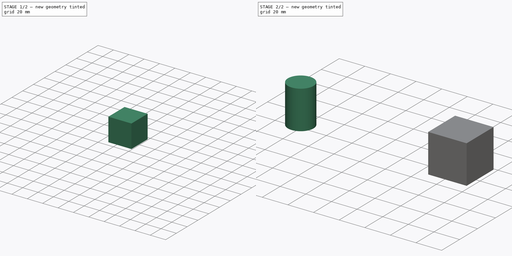
[diagram: build sequence overview — one tinted view per stage of 2, left to right]
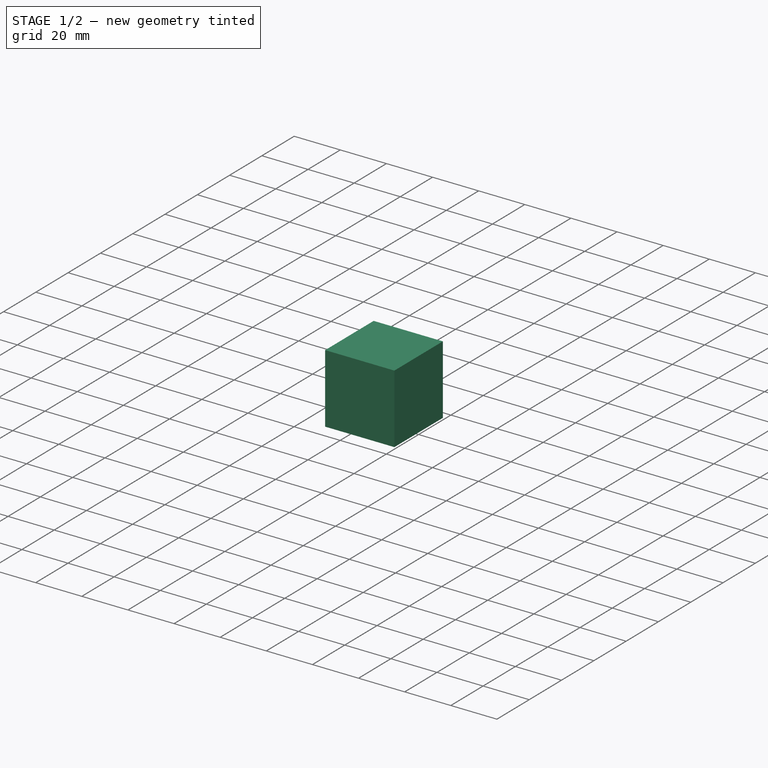
[diagram: stage 1 of 2 — iso view after this stage's code; geometry added in this stage tinted green]
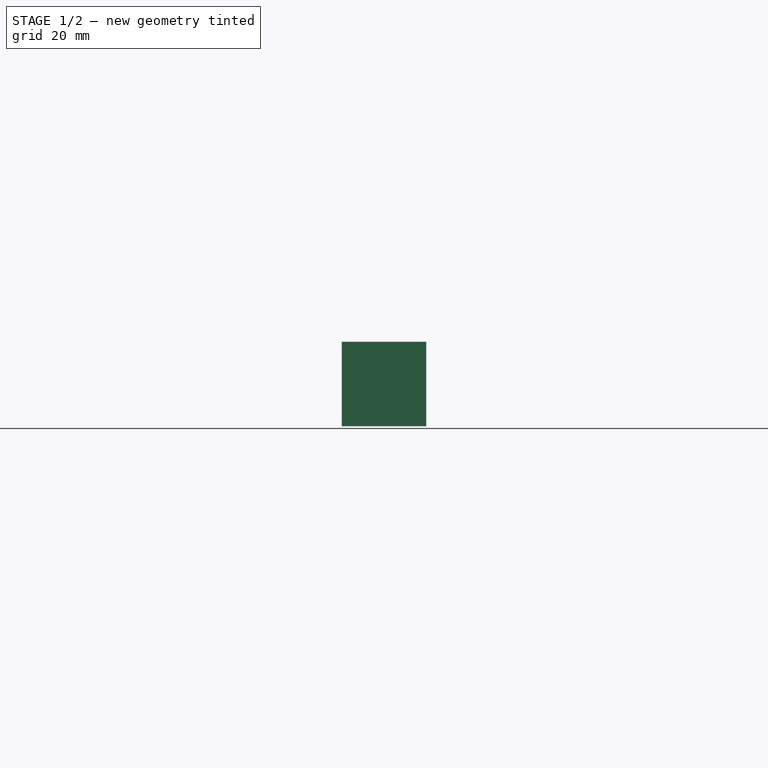
[diagram: stage 1 of 2 — front view after this stage's code; geometry added in this stage tinted green]
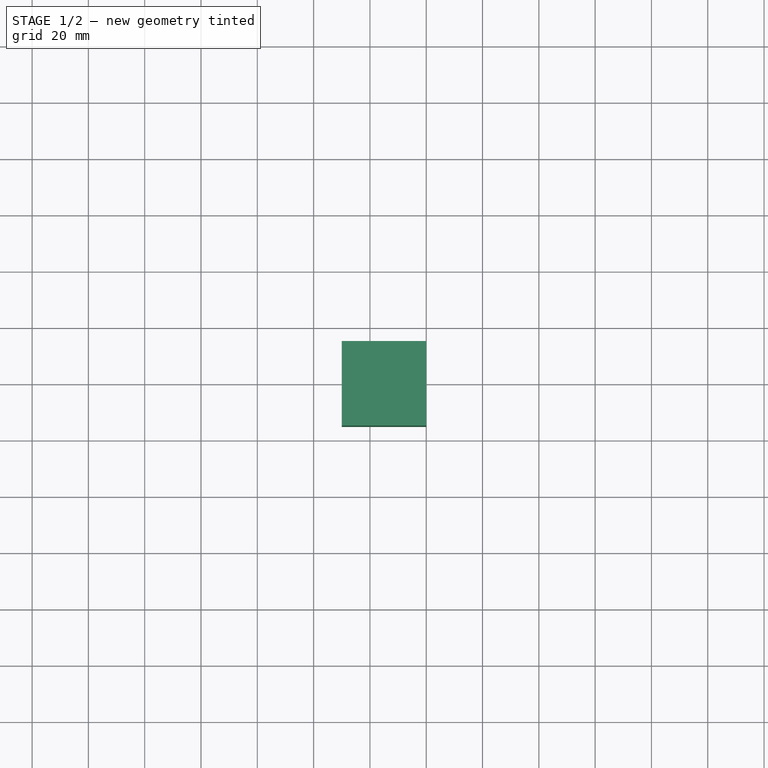
[diagram: stage 1 of 2 — top view after this stage's code; geometry added in this stage tinted green]
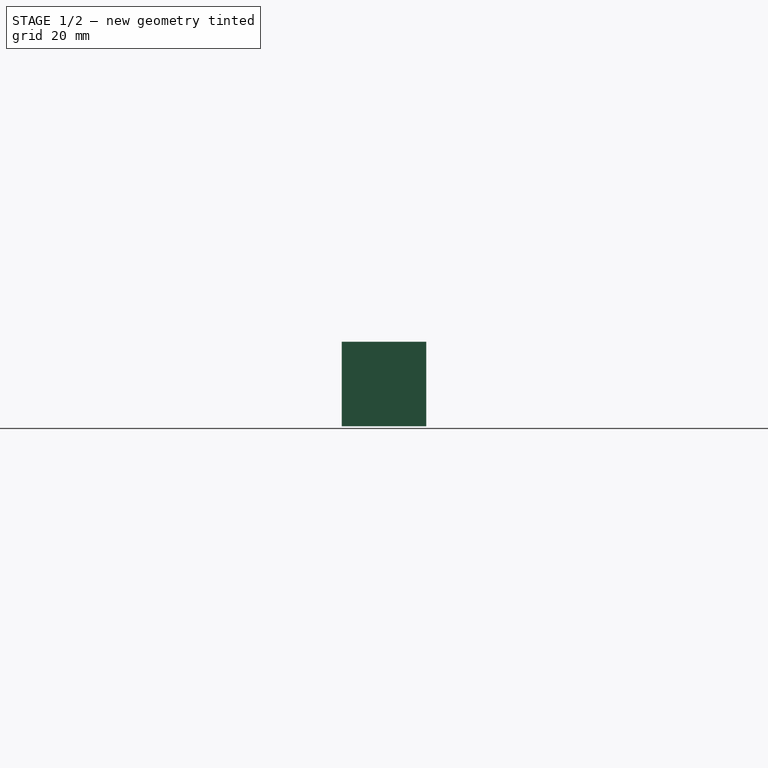
[diagram: stage 1 of 2 — right view after this stage's code; geometry added in this stage tinted green]
FCSTD DOCUMENT  (FreeCAD 0.20R29177 (Git))
Label: Monitor Stand Foot
License: All rights reserved
LicenseURL: http://en.wikipedia.org/wiki/All_rights_reserved
objects: Sketcher::SketchObject×2, PartDesign::Pad×2, PartDesign::Body×2, App::Part×2, Spreadsheet::Sheet×1
note: 8 computed .brp shape members not serialized (recipe doc carries the construction recipe); baked Part::Feature solids carry a one-line shape summary decoded from their .brp

FEATURE [PartDesign::Body] Body
  Group = -> [Sketch,Pad]
  Origin = -> Origin001
  Tip = -> Pad
FEATURE [App::Part] Part  label="Round"
  Group = -> [Body]
  Origin = -> Origin
FEATURE [Sketcher::SketchObject] Sketch001
  FullyConstrained = true
  MapMode = 5
  Support = -> [XY_Plane003]
  expr: Constraints[11] = Spreadsheet.side_length / 2
  expr: Constraints[8] = Spreadsheet.side_length
  expr: Constraints[9] = Spreadsheet.side_length
  sketch-geometry (4):
    g0: LineSegment StartX=50 StartY=15 StartZ=0 EndX=80 EndY=15 EndZ=0
    g1: LineSegment StartX=80 StartY=15 StartZ=0 EndX=80 EndY=-15 EndZ=0
    g2: LineSegment StartX=80 StartY=-15 StartZ=0 EndX=50 EndY=-15 EndZ=0
    g3: LineSegment StartX=50 StartY=-15 StartZ=0 EndX=50 EndY=15 EndZ=0
  constraints (12):
    c: Coincident(g0,g1)
    c: Coincident(g1,g2)
    c: Coincident(g2,g3)
    c: Coincident(g3,g0)
    c: Horizontal(g0)
    c: Horizontal(g2)
    c: Vertical(g1)
    c: Vertical(g3)
    c: DistanceX(g0,g0) = 30
    c: DistanceY(g2,g0) = 30
    c: DistanceX(g-1,g0) = 50
    c: DistanceY(g2,g-1) = 15
FEATURE [PartDesign::Pad] Pad001
  Direction = (0,0,1)
  Length = 30
  Length2 = 10
  Profile = -> Sketch001
  ReferenceAxis = -> Sketch001 [N_Axis]
  Type = 0
  expr: Length = Spreadsheet.height
FEATURE [PartDesign::Body] Body001
  Group = -> [Sketch001,Pad001]
  Origin = -> Origin003
  Tip = -> Pad001
FEATURE [App::Part] Part001  label="Square"
  Group = -> [Body001]
  Origin = -> Origin002
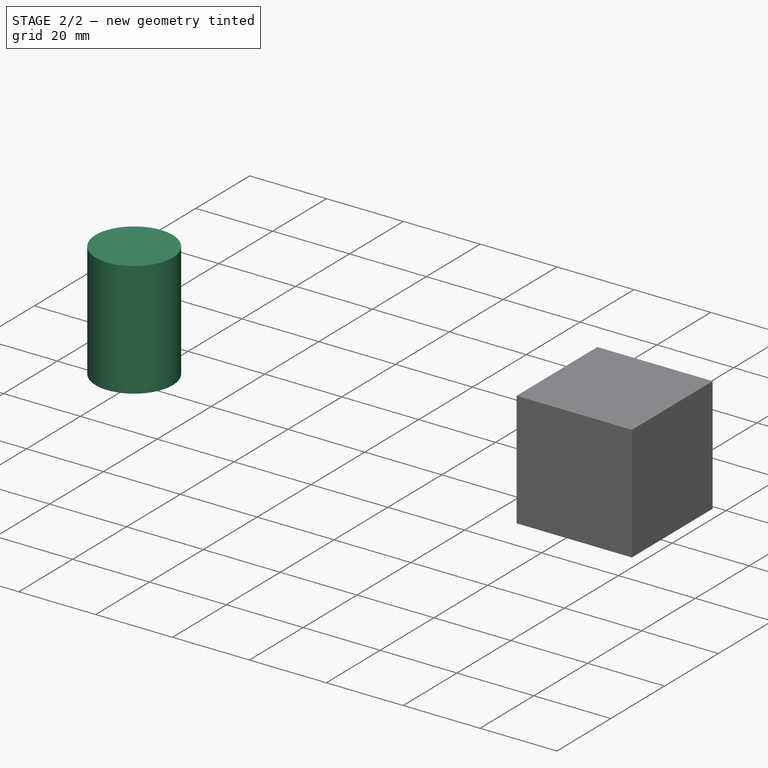
[diagram: stage 2 of 2 — iso view after this stage's code; geometry added in this stage tinted green]
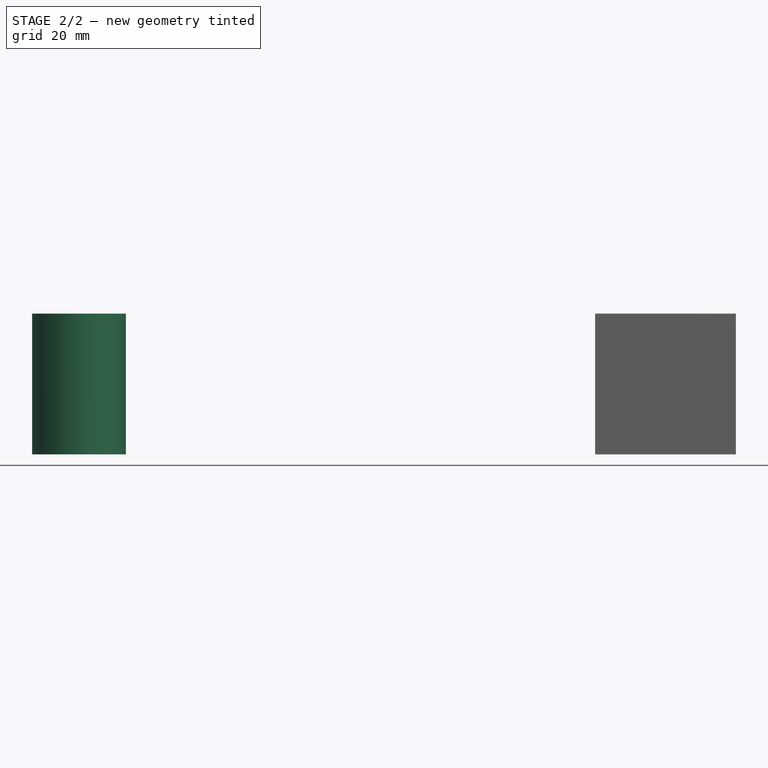
[diagram: stage 2 of 2 — front view after this stage's code; geometry added in this stage tinted green]
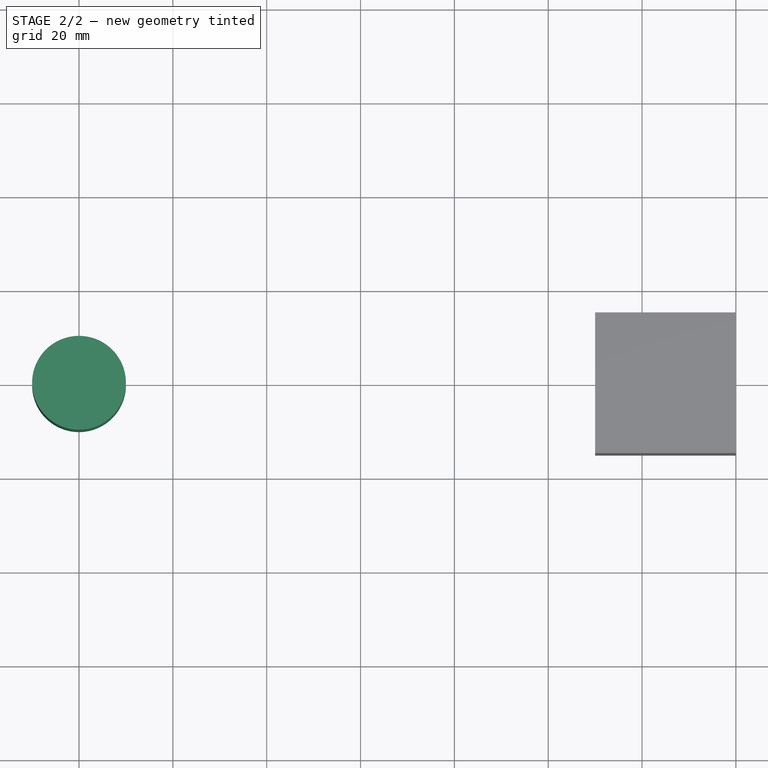
[diagram: stage 2 of 2 — top view after this stage's code; geometry added in this stage tinted green]
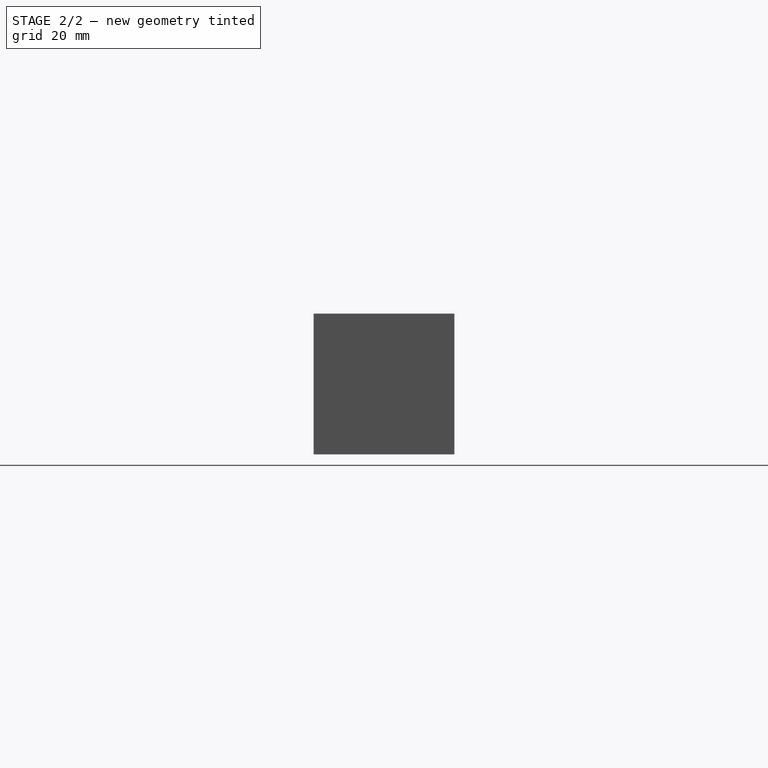
[diagram: stage 2 of 2 — right view after this stage's code; geometry added in this stage tinted green]
FEATURE [Sketcher::SketchObject] Sketch
  FullyConstrained = true
  MapMode = 5
  Support = -> [XY_Plane001]
  expr: Constraints[0] = Spreadsheet.diameter
  expr: Constraints[2] = 50 + Spreadsheet.diameter / 2
  sketch-geometry (1):
    g0: Circle CenterX=-60 CenterY=0 CenterZ=0 NormalX=0 NormalY=0 NormalZ=1 AngleXU=0 Radius=10
  constraints (3):
    c: Diameter(g0) = 20
    c: Horizontal(g0,g-1)
    c: DistanceX(g0,g-1) = 60
FEATURE [Spreadsheet::Sheet] Spreadsheet
  cells = A1=diameter; B1(diameter)=20; A2=height; B2(height)=30; A3=side_length; B3(side_length)=30
FEATURE [PartDesign::Pad] Pad
  Direction = (0,0,1)
  Length = 30
  Length2 = 10
  Profile = -> Sketch
  ReferenceAxis = -> Sketch [N_Axis]
  Type = 0
  expr: Length = Spreadsheet.height
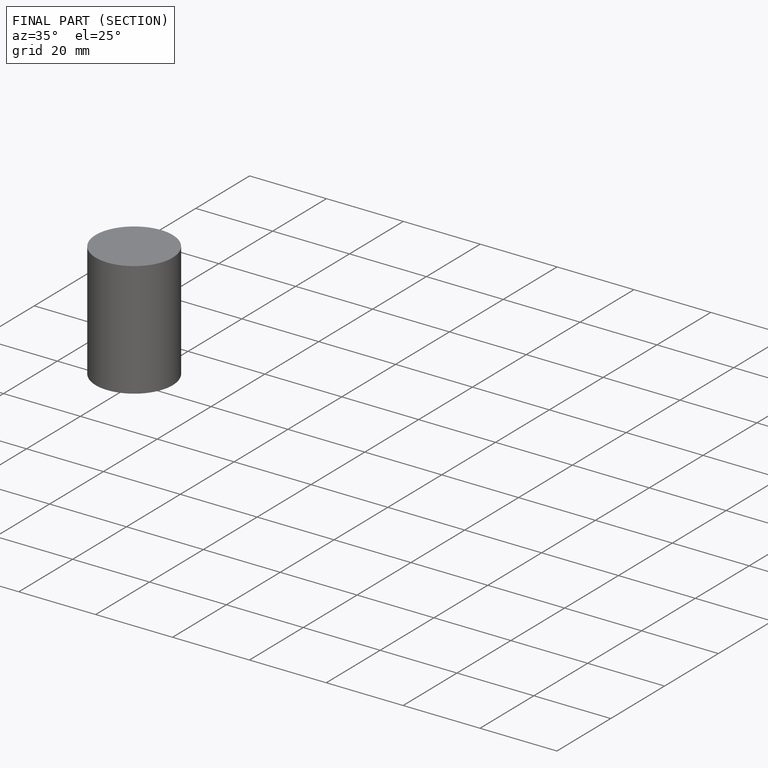
[diagram: finished part — half-section view (interior)]
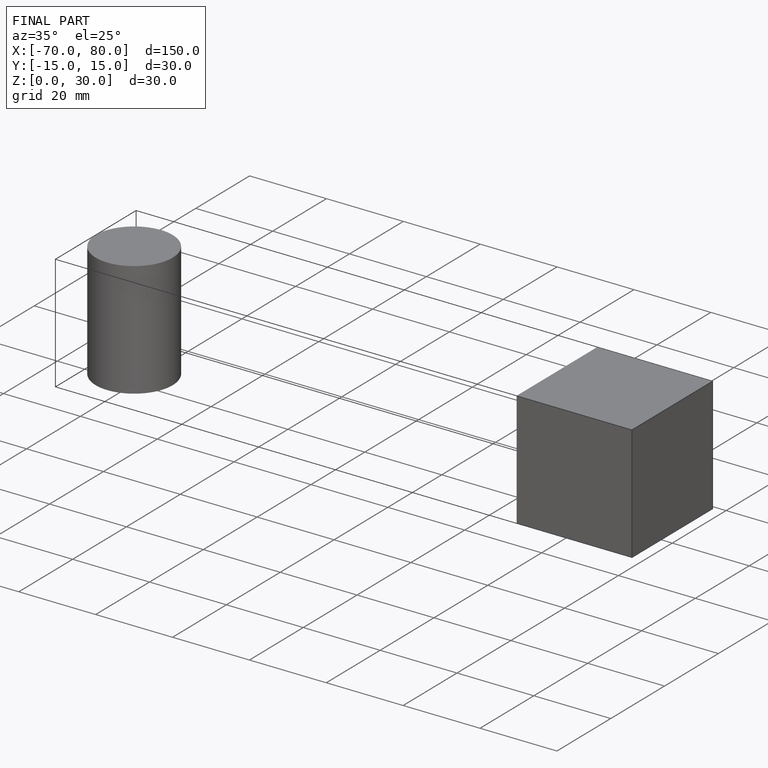
[diagram: finished part — iso view with bounding-box wireframe]
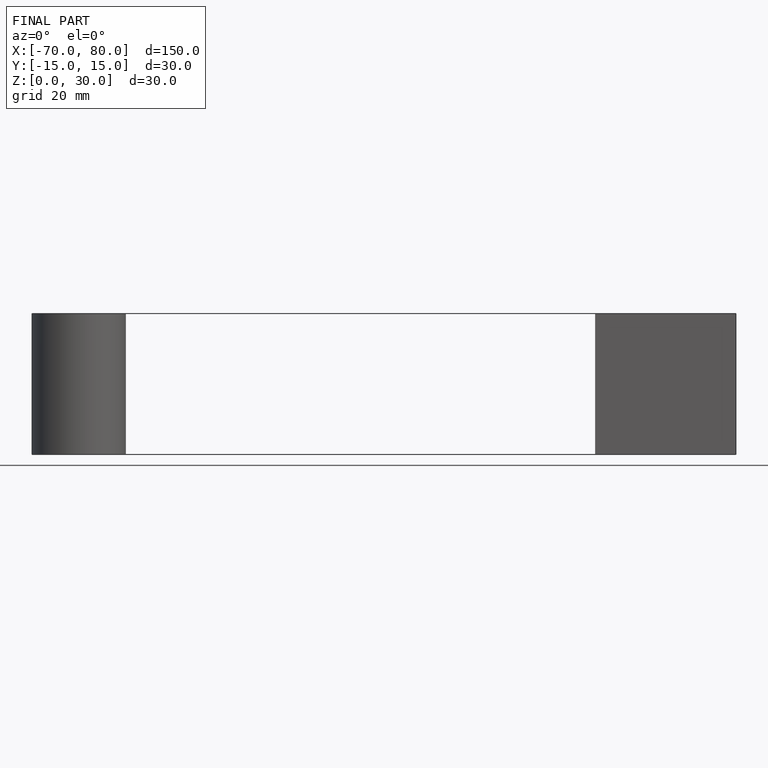
[diagram: finished part — front view with bounding-box wireframe]
